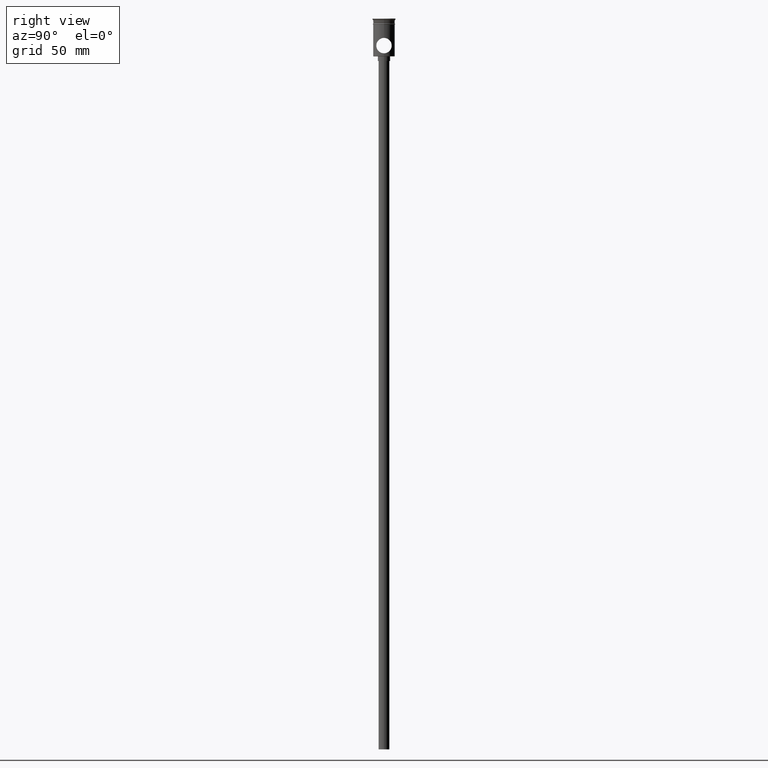
[diagram: clean part render]
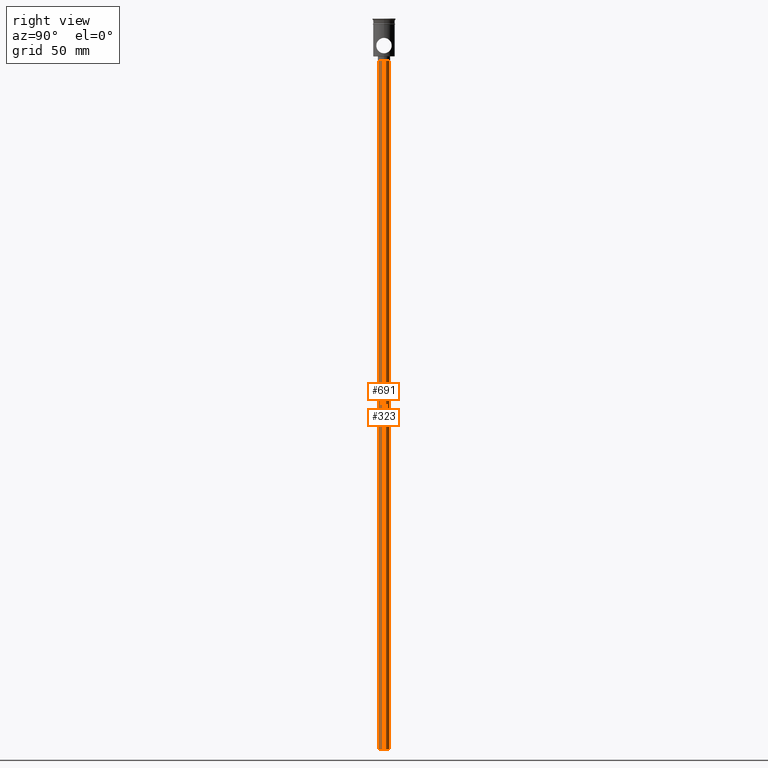
[diagram: same view with one multi-face feature highlighted, each face labeled with its STEP entity id]
A machine part, right view. The highlighted faces form ONE feature: a constant-radius fillet chain: 2 tangent blend faces with common blend radius 3.5 mm. The faces share edges in the B-rep.
Their STEP definitions:
[1] entity #323 (Cylinder):
#90 = ORIENTED_EDGE ( 'NONE', *, *, #330, .T. ) ;
#102 = CARTESIAN_POINT ( 'NONE',  ( 0.000000000000000000, 0.000000000000000000, -474.5000000000000568 ) ) ;
#164 = DIRECTION ( 'NONE',  ( -0.000000000000000000, -0.000000000000000000, 1.000000000000000000 ) ) ;
#176 = CIRCLE ( 'NONE', #1206, 3.500000000000000444 ) ;
#201 = ORIENTED_EDGE ( 'NONE', *, *, #607, .F. ) ;
#323 = ADVANCED_FACE ( 'NONE', ( #1009 ), #1130, .T. ) ;
#330 = EDGE_CURVE ( 'NONE', #428, #698, #613, .T. ) ;
#350 = EDGE_CURVE ( 'NONE', #698, #1053, #176, .T. ) ;
#370 = AXIS2_PLACEMENT_3D ( 'NONE', #840, #605, #855 ) ;
#402 = CARTESIAN_POINT ( 'NONE',  ( -3.500000000000000444, 4.286263797015737088E-16, -474.5000000000000568 ) ) ;
#426 = CARTESIAN_POINT ( 'NONE',  ( 3.500000000000000444, 0.000000000000000000, -474.5000000000000568 ) ) ;
#428 = VERTEX_POINT ( 'NONE', #402 ) ;
#447 = EDGE_CURVE ( 'NONE', #1002, #1053, #980, .T. ) ;
#598 = ORIENTED_EDGE ( 'NONE', *, *, #350, .T. ) ;
#605 = DIRECTION ( 'NONE',  ( 0.000000000000000000, 0.000000000000000000, -1.000000000000000000 ) ) ;
#607 = EDGE_CURVE ( 'NONE', #428, #1002, #1373, .T. ) ;
#613 = LINE ( 'NONE', #1426, #1161 ) ;
#698 = VERTEX_POINT ( 'NONE', #703 ) ;
#703 = CARTESIAN_POINT ( 'NONE',  ( -3.500000000000000444, 4.286263797015737088E-16, -27.50000000000000000 ) ) ;
#753 = AXIS2_PLACEMENT_3D ( 'NONE', #102, #1016, #845 ) ;
#823 = DIRECTION ( 'NONE',  ( -1.000000000000000000, 0.000000000000000000, 0.000000000000000000 ) ) ;
#840 = CARTESIAN_POINT ( 'NONE',  ( 0.000000000000000000, 0.000000000000000000, -474.5000000000000568 ) ) ;
#845 = DIRECTION ( 'NONE',  ( 1.000000000000000000, 0.000000000000000000, 0.000000000000000000 ) ) ;
#855 = DIRECTION ( 'NONE',  ( -1.000000000000000000, 0.000000000000000000, 0.000000000000000000 ) ) ;
#888 = CARTESIAN_POINT ( 'NONE',  ( 3.500000000000000444, 0.000000000000000000, -27.50000000000000000 ) ) ;
#946 = ORIENTED_EDGE ( 'NONE', *, *, #447, .F. ) ;
#980 = LINE ( 'NONE', #426, #1477 ) ;
#1002 = VERTEX_POINT ( 'NONE', #1203 ) ;
#1009 = FACE_OUTER_BOUND ( 'NONE', #1352, .T. ) ;
#1016 = DIRECTION ( 'NONE',  ( -0.000000000000000000, -0.000000000000000000, 1.000000000000000000 ) ) ;
#1053 = VERTEX_POINT ( 'NONE', #888 ) ;
#1130 = CYLINDRICAL_SURFACE ( 'NONE', #753, 3.500000000000000444 ) ;
#1161 = VECTOR ( 'NONE', #164, 1000.000000000000000 ) ;
#1203 = CARTESIAN_POINT ( 'NONE',  ( 3.500000000000000444, 0.000000000000000000, -474.5000000000000568 ) ) ;
#1206 = AXIS2_PLACEMENT_3D ( 'NONE', #1308, #1292, #823 ) ;
#1217 = DIRECTION ( 'NONE',  ( -0.000000000000000000, -0.000000000000000000, 1.000000000000000000 ) ) ;
#1292 = DIRECTION ( 'NONE',  ( 0.000000000000000000, 0.000000000000000000, -1.000000000000000000 ) ) ;
#1308 = CARTESIAN_POINT ( 'NONE',  ( 0.000000000000000000, 0.000000000000000000, -27.50000000000000000 ) ) ;
#1352 = EDGE_LOOP ( 'NONE', ( #201, #90, #598, #946 ) ) ;
#1373 = CIRCLE ( 'NONE', #370, 3.500000000000000444 ) ;
#1426 = CARTESIAN_POINT ( 'NONE',  ( -3.500000000000000444, 4.286263797015737088E-16, -474.5000000000000568 ) ) ;
#1477 = VECTOR ( 'NONE', #1217, 1000.000000000000000 ) ;
[2] entity #691 (Cylinder):
#36 = CIRCLE ( 'NONE', #871, 3.500000000000000444 ) ;
#100 = EDGE_LOOP ( 'NONE', ( #551, #619, #1153, #779 ) ) ;
#121 = CARTESIAN_POINT ( 'NONE',  ( 0.000000000000000000, 0.000000000000000000, -27.50000000000000000 ) ) ;
#164 = DIRECTION ( 'NONE',  ( -0.000000000000000000, -0.000000000000000000, 1.000000000000000000 ) ) ;
#177 = EDGE_CURVE ( 'NONE', #1002, #428, #1405, .T. ) ;
#330 = EDGE_CURVE ( 'NONE', #428, #698, #613, .T. ) ;
#402 = CARTESIAN_POINT ( 'NONE',  ( -3.500000000000000444, 4.286263797015737088E-16, -474.5000000000000568 ) ) ;
#426 = CARTESIAN_POINT ( 'NONE',  ( 3.500000000000000444, 0.000000000000000000, -474.5000000000000568 ) ) ;
#428 = VERTEX_POINT ( 'NONE', #402 ) ;
#447 = EDGE_CURVE ( 'NONE', #1002, #1053, #980, .T. ) ;
#551 = ORIENTED_EDGE ( 'NONE', *, *, #330, .F. ) ;
#577 = DIRECTION ( 'NONE',  ( 1.000000000000000000, 0.000000000000000000, 0.000000000000000000 ) ) ;
#613 = LINE ( 'NONE', #1426, #1161 ) ;
#619 = ORIENTED_EDGE ( 'NONE', *, *, #177, .F. ) ;
#661 = FACE_OUTER_BOUND ( 'NONE', #100, .T. ) ;
#691 = ADVANCED_FACE ( 'NONE', ( #661 ), #1380, .T. ) ;
#698 = VERTEX_POINT ( 'NONE', #703 ) ;
#703 = CARTESIAN_POINT ( 'NONE',  ( -3.500000000000000444, 4.286263797015737088E-16, -27.50000000000000000 ) ) ;
#754 = AXIS2_PLACEMENT_3D ( 'NONE', #1355, #1271, #577 ) ;
#779 = ORIENTED_EDGE ( 'NONE', *, *, #863, .T. ) ;
#809 = DIRECTION ( 'NONE',  ( -1.000000000000000000, 0.000000000000000000, 0.000000000000000000 ) ) ;
#829 = DIRECTION ( 'NONE',  ( -1.000000000000000000, 0.000000000000000000, 0.000000000000000000 ) ) ;
#863 = EDGE_CURVE ( 'NONE', #1053, #698, #36, .T. ) ;
#871 = AXIS2_PLACEMENT_3D ( 'NONE', #121, #928, #829 ) ;
#888 = CARTESIAN_POINT ( 'NONE',  ( 3.500000000000000444, 0.000000000000000000, -27.50000000000000000 ) ) ;
#928 = DIRECTION ( 'NONE',  ( 0.000000000000000000, 0.000000000000000000, -1.000000000000000000 ) ) ;
#941 = CARTESIAN_POINT ( 'NONE',  ( 0.000000000000000000, 0.000000000000000000, -474.5000000000000568 ) ) ;
#980 = LINE ( 'NONE', #426, #1477 ) ;
#1002 = VERTEX_POINT ( 'NONE', #1203 ) ;
#1053 = VERTEX_POINT ( 'NONE', #888 ) ;
#1087 = AXIS2_PLACEMENT_3D ( 'NONE', #941, #1180, #809 ) ;
#1153 = ORIENTED_EDGE ( 'NONE', *, *, #447, .T. ) ;
#1161 = VECTOR ( 'NONE', #164, 1000.000000000000000 ) ;
#1180 = DIRECTION ( 'NONE',  ( 0.000000000000000000, 0.000000000000000000, -1.000000000000000000 ) ) ;
#1203 = CARTESIAN_POINT ( 'NONE',  ( 3.500000000000000444, 0.000000000000000000, -474.5000000000000568 ) ) ;
#1217 = DIRECTION ( 'NONE',  ( -0.000000000000000000, -0.000000000000000000, 1.000000000000000000 ) ) ;
#1271 = DIRECTION ( 'NONE',  ( -0.000000000000000000, -0.000000000000000000, 1.000000000000000000 ) ) ;
#1355 = CARTESIAN_POINT ( 'NONE',  ( 0.000000000000000000, 0.000000000000000000, -474.5000000000000568 ) ) ;
#1380 = CYLINDRICAL_SURFACE ( 'NONE', #754, 3.500000000000000444 ) ;
#1405 = CIRCLE ( 'NONE', #1087, 3.500000000000000444 ) ;
#1426 = CARTESIAN_POINT ( 'NONE',  ( -3.500000000000000444, 4.286263797015737088E-16, -474.5000000000000568 ) ) ;
#1477 = VECTOR ( 'NONE', #1217, 1000.000000000000000 ) ;